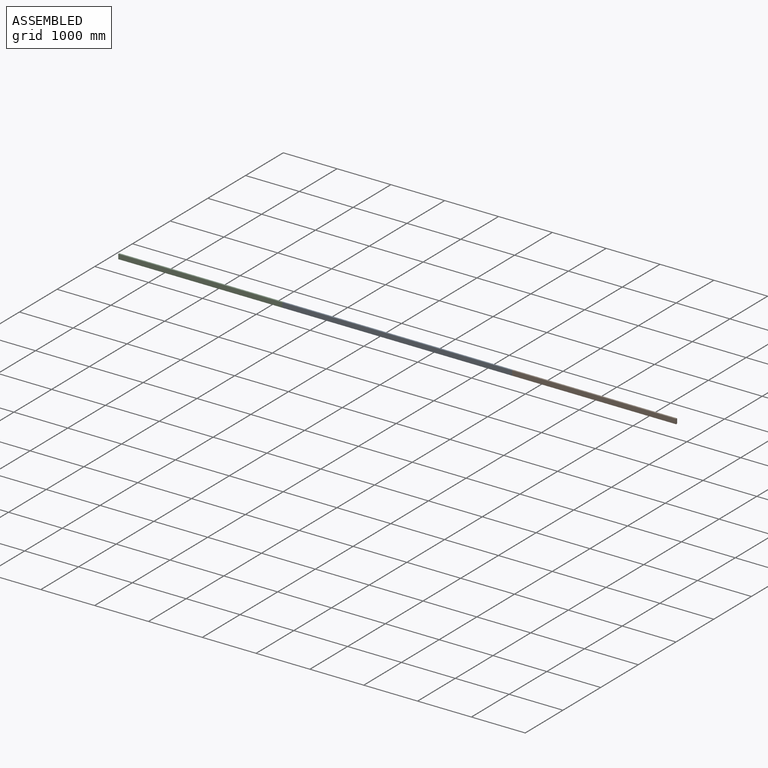
[diagram: assembled view]
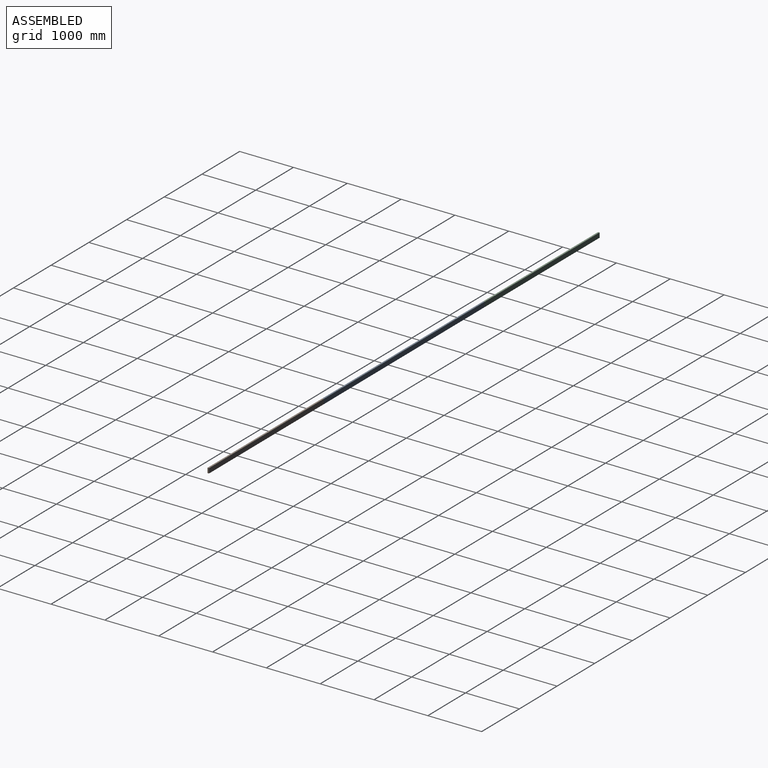
[diagram: assembled view, second angle]
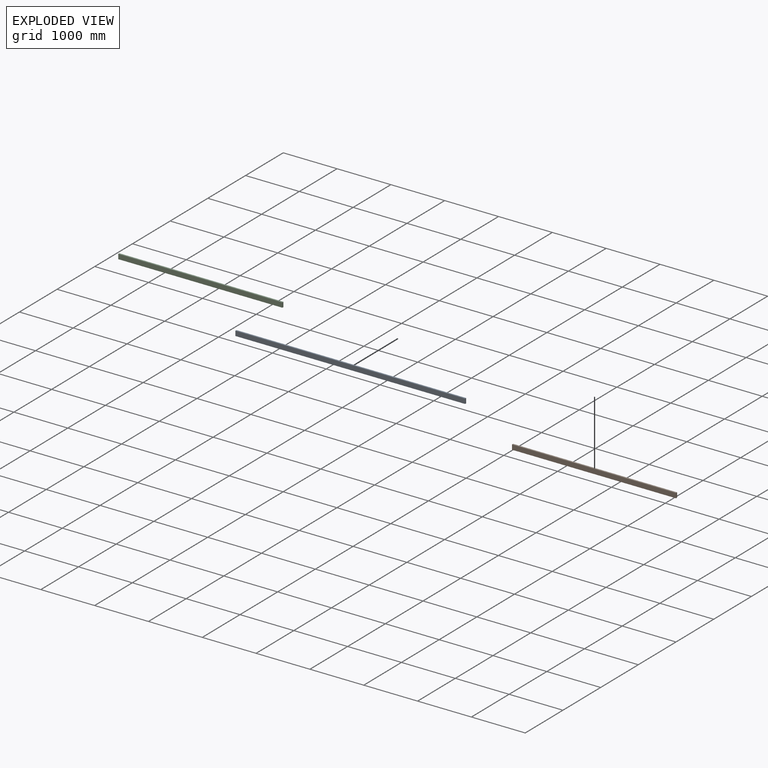
[diagram: exploded view]
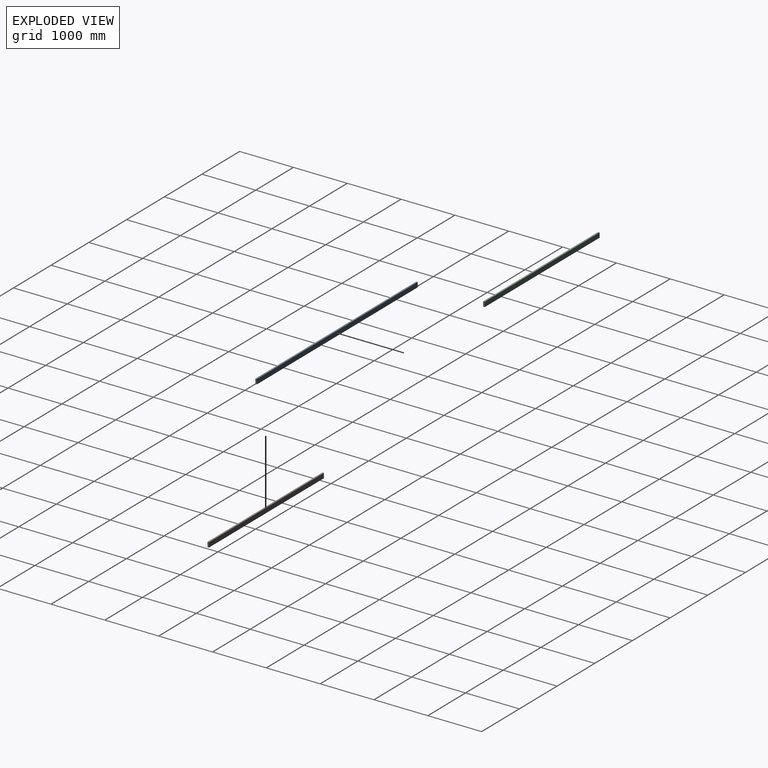
[diagram: exploded view, second angle]
ASSEMBLY  parts=3 mates=2
PART A: 6 faces, bbox 28.6x4267.2x88.9 mm
  f0: plane 4267.2x28.58mm, normal (0,0,1), area 121935.2mm2, adj f1,f3,f4,f5
  f1: plane 4267.2x88.9mm, normal (-1,0,0), area 379354.1mm2, adj f0,f2,f4,f5
  f2: plane 4267.2x28.58mm, normal (0,0,-1), area 121935.2mm2, adj f1,f3,f4,f5
  f3: plane 4267.2x88.9mm, normal (1,0,0), area 379354.1mm2, adj f0,f2,f4,f5
  f4: plane 88.9x28.58mm, normal (0,-1,0), area 2540.3mm2, adj f0,f1,f2,f3
  f5: plane 88.9x28.58mm, normal (0,1,0), area 2540.3mm2, adj f0,f1,f2,f3
PART B: 6 faces, bbox 28.7x3048x88.9 mm
  f0: plane 3048x28.65mm, normal (0,0,1), area 87328.9mm2, adj f1,f3,f4,f5
  f1: plane 3048x88.9mm, normal (-1,0,0), area 270967.2mm2, adj f0,f2,f4,f5
  f2: plane 3048x28.65mm, normal (0,0,-1), area 87328.9mm2, adj f1,f3,f4,f5
  f3: plane 3048x88.9mm, normal (1,0,0), area 270967.2mm2, adj f0,f2,f4,f5
  f4: plane 88.9x28.65mm, normal (0,-1,0), area 2547.1mm2, adj f0,f1,f2,f3
  f5: plane 88.9x28.65mm, normal (0,1,0), area 2547.1mm2, adj f0,f1,f2,f3
PART C: same geometry as B
PLACE A rot(axis=(0,0,1),90deg) t=(-2089.77,-22.07,33.94)mm
PLACE B rot(axis=(0,0,-1),90deg) t=(5225.43,-22.97,25.67)mm
PLACE C rot(axis=(0,0,1),90deg) t=(-5137.77,-20.64,25.67)mm
MATE fastened B.f0 <-> A.f0  axis (0,0,1) through (2177.43,-36.13,53.92)mm
MATE fastened A.f1 <-> C.f1  axis (0,-1,0) through (-2089.77,-36.13,9.47)mm
